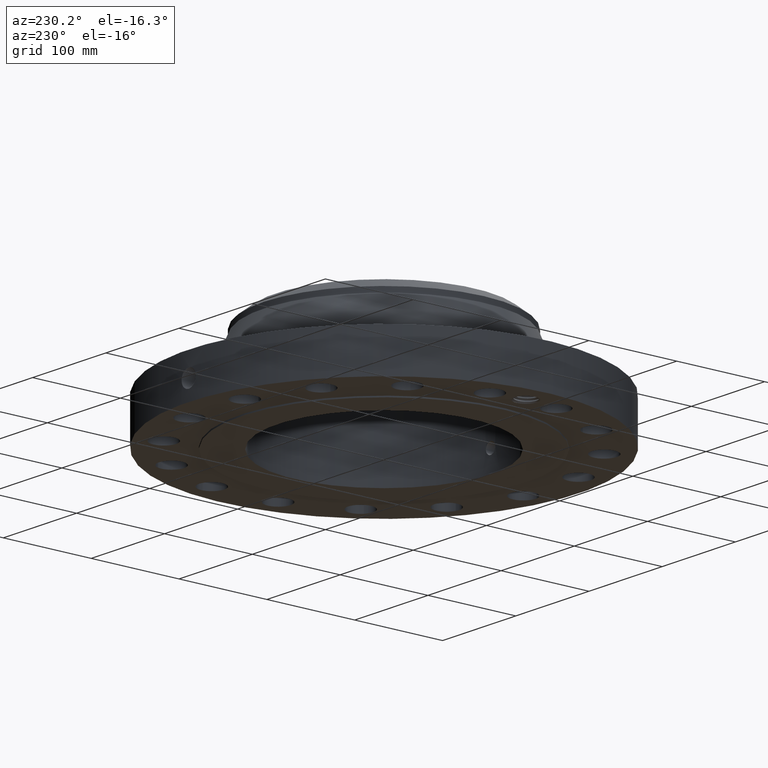
[diagram: clean part render]
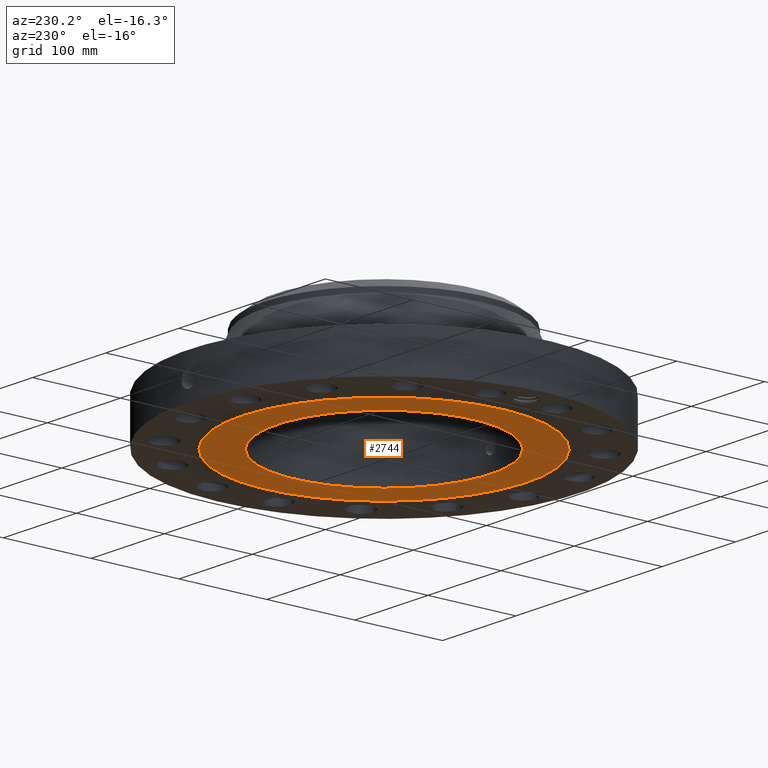
[diagram: same view with one face highlighted and labeled with its STEP entity id]
A machine part, auxiliary view. The second image highlights one B-rep face of the part: STEP entity #2744.
In plain terms, the highlighted planar face has unit normal (0, 0, -1).
Its self-contained STEP definition (entity closure, byte-faithful):
#1446=AXIS2_PLACEMENT_3D('Circle Axis2P3D',#1444,#1445,$) ;
#1472=AXIS2_PLACEMENT_3D('Circle Axis2P3D',#1470,#1471,$) ;
#2720=AXIS2_PLACEMENT_3D('Plane Axis2P3D',#2717,#2718,#2719) ;
#2728=AXIS2_PLACEMENT_3D('Circle Axis2P3D',#2726,#2727,$) ;
#2737=AXIS2_PLACEMENT_3D('Circle Axis2P3D',#2735,#2736,$) ;
#1444=CARTESIAN_POINT('Axis2P3D Location',(0.,0.,8.39223703654E-016)) ;
#1448=CARTESIAN_POINT('Vertex',(3.05633780861,5.59458883207,8.39223703654E-016)) ;
#1450=CARTESIAN_POINT('Vertex',(-3.05633780861,-5.59458883207,8.39223703654E-016)) ;
#1470=CARTESIAN_POINT('Axis2P3D Location',(0.,0.,8.39223703654E-016)) ;
#2717=CARTESIAN_POINT('Axis2P3D Location',(0.,4.78100000002,0.)) ;
#2726=CARTESIAN_POINT('Axis2P3D Location',(0.,0.,0.)) ;
#2730=CARTESIAN_POINT('Vertex',(2.29213350008,4.19572222841,-1.39870617276E-014)) ;
#2732=CARTESIAN_POINT('Vertex',(-2.29213350008,-4.19572222841,-1.39870617276E-014)) ;
#2735=CARTESIAN_POINT('Axis2P3D Location',(0.,0.,0.)) ;
#1445=DIRECTION('Axis2P3D Direction',(0.,0.,-0.0393700787402)) ;
#1471=DIRECTION('Axis2P3D Direction',(0.,0.,-0.0393700787402)) ;
#2718=DIRECTION('Axis2P3D Direction',(0.,0.,-0.0393700787402)) ;
#2719=DIRECTION('Axis2P3D XDirection',(0.0393700787402,0.,0.)) ;
#2727=DIRECTION('Axis2P3D Direction',(0.,0.,-0.0393700787402)) ;
#2736=DIRECTION('Axis2P3D Direction',(0.,0.,-0.0393700787402)) ;
#2723=ORIENTED_EDGE('',*,*,#1474,.T.) ;
#2724=ORIENTED_EDGE('',*,*,#1452,.T.) ;
#2741=ORIENTED_EDGE('',*,*,#2734,.F.) ;
#2742=ORIENTED_EDGE('',*,*,#2739,.F.) ;
#2743=FACE_BOUND('',#2740,.T.) ;
#2744=ADVANCED_FACE('PartBody',(#2725,#2743),#2721,.T.) ;
#1447=CIRCLE('generated circle',#1446,6.37500000003) ;
#1473=CIRCLE('generated circle',#1472,6.37500000003) ;
#2729=CIRCLE('generated circle',#2728,4.78100000002) ;
#2738=CIRCLE('generated circle',#2737,4.78100000002) ;
#1452=EDGE_CURVE('',#1449,#1451,#1447,.T.) ;
#1474=EDGE_CURVE('',#1451,#1449,#1473,.T.) ;
#2734=EDGE_CURVE('',#2731,#2733,#2729,.T.) ;
#2739=EDGE_CURVE('',#2733,#2731,#2738,.T.) ;
#2722=EDGE_LOOP('',(#2723,#2724)) ;
#2740=EDGE_LOOP('',(#2741,#2742)) ;
#2725=FACE_OUTER_BOUND('',#2722,.T.) ;
#2721=PLANE('',#2720) ;
#1449=VERTEX_POINT('',#1448) ;
#1451=VERTEX_POINT('',#1450) ;
#2731=VERTEX_POINT('',#2730) ;
#2733=VERTEX_POINT('',#2732) ;